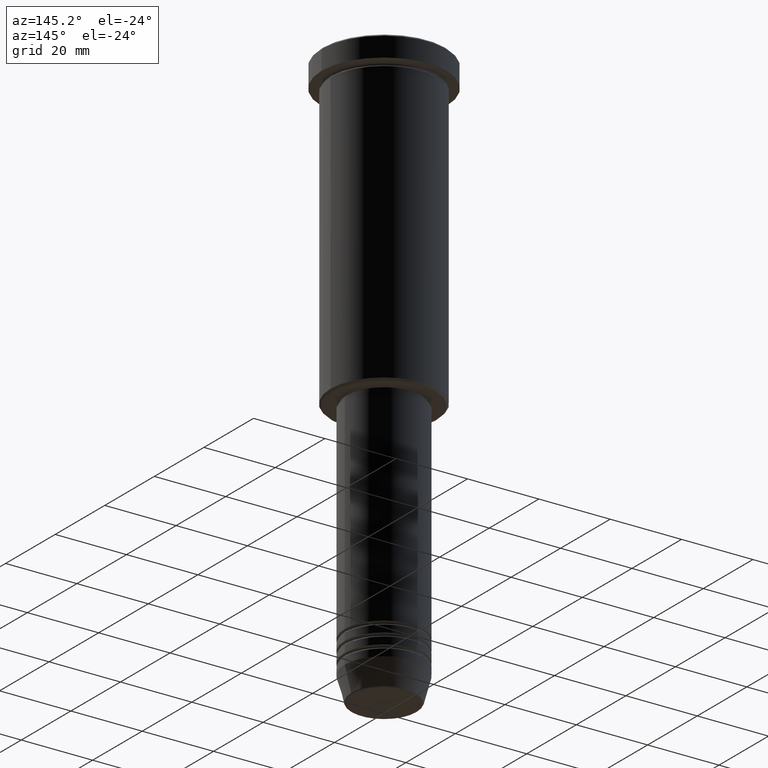
[diagram: clean part render]
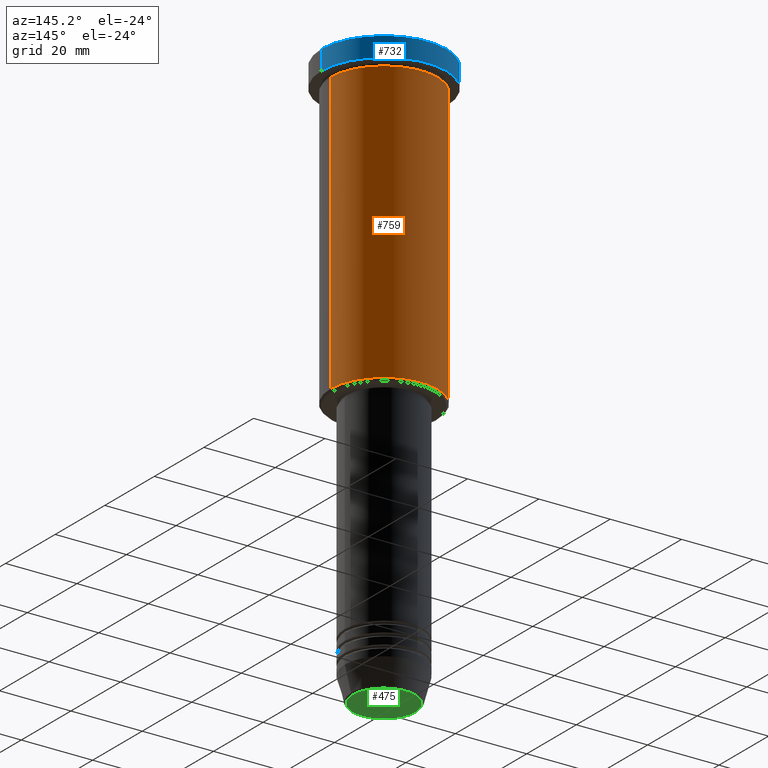
[diagram: same view with three faces highlighted in distinct colors, each labeled with its STEP entity id]
A machine part, auxiliary view with three faces highlighted in distinct colors.
Their STEP definitions:

[orange] entity #759 — the highlighted cylindrical surface (partial cylindrical patch) has radius 15 mm, axis along (-0, -0, 1).
#4 = ORIENTED_EDGE ( 'NONE', *, *, #534, .F. ) ;
#80 = CARTESIAN_POINT ( 'NONE',  ( 0.000000000000000000, 0.000000000000000000, -6.999999999999995559 ) ) ;
#82 = CARTESIAN_POINT ( 'NONE',  ( -15.00000000000000000, 1.836970198721029589E-15, -6.999999999999995559 ) ) ;
#107 = DIRECTION ( 'NONE',  ( -0.000000000000000000, -0.000000000000000000, 1.000000000000000000 ) ) ;
#114 = EDGE_CURVE ( 'NONE', #267, #514, #1035, .T. ) ;
#147 = CYLINDRICAL_SURFACE ( 'NONE', #877, 15.00000000000000000 ) ;
#241 = DIRECTION ( 'NONE',  ( -1.000000000000000000, 0.000000000000000000, 0.000000000000000000 ) ) ;
#267 = VERTEX_POINT ( 'NONE', #1138 ) ;
#316 = DIRECTION ( 'NONE',  ( -0.000000000000000000, -0.000000000000000000, 1.000000000000000000 ) ) ;
#329 = DIRECTION ( 'NONE',  ( -0.000000000000000000, -0.000000000000000000, 1.000000000000000000 ) ) ;
#336 = VERTEX_POINT ( 'NONE', #602 ) ;
#358 = DIRECTION ( 'NONE',  ( 1.000000000000000000, 0.000000000000000000, 0.000000000000000000 ) ) ;
#408 = CARTESIAN_POINT ( 'NONE',  ( 0.000000000000000000, 0.000000000000000000, 0.000000000000000000 ) ) ;
#443 = ORIENTED_EDGE ( 'NONE', *, *, #863, .F. ) ;
#479 = AXIS2_PLACEMENT_3D ( 'NONE', #1149, #504, #241 ) ;
#504 = DIRECTION ( 'NONE',  ( -0.000000000000000000, -0.000000000000000000, 1.000000000000000000 ) ) ;
#514 = VERTEX_POINT ( 'NONE', #82 ) ;
#520 = ORIENTED_EDGE ( 'NONE', *, *, #746, .T. ) ;
#534 = EDGE_CURVE ( 'NONE', #914, #336, #853, .T. ) ;
#536 = DIRECTION ( 'NONE',  ( -0.000000000000000000, -0.000000000000000000, 1.000000000000000000 ) ) ;
#571 = VECTOR ( 'NONE', #316, 1000.000000000000000 ) ;
#582 = CARTESIAN_POINT ( 'NONE',  ( -15.00000000000000000, 1.836970198721029589E-15, 0.000000000000000000 ) ) ;
#602 = CARTESIAN_POINT ( 'NONE',  ( 15.00000000000000000, 0.000000000000000000, -6.999999999999995559 ) ) ;
#633 = CIRCLE ( 'NONE', #1090, 15.00000000000000000 ) ;
#705 = EDGE_LOOP ( 'NONE', ( #520, #1056, #443, #4 ) ) ;
#746 = EDGE_CURVE ( 'NONE', #914, #267, #899, .T. ) ;
#759 = ADVANCED_FACE ( 'NONE', ( #948 ), #147, .T. ) ;
#853 = LINE ( 'NONE', #929, #1124 ) ;
#863 = EDGE_CURVE ( 'NONE', #336, #514, #633, .T. ) ;
#877 = AXIS2_PLACEMENT_3D ( 'NONE', #408, #329, #884 ) ;
#884 = DIRECTION ( 'NONE',  ( 1.000000000000000000, 0.000000000000000000, 0.000000000000000000 ) ) ;
#899 = CIRCLE ( 'NONE', #479, 15.00000000000000000 ) ;
#905 = CARTESIAN_POINT ( 'NONE',  ( 15.00000000000000000, 0.000000000000000000, -85.49999999999998579 ) ) ;
#914 = VERTEX_POINT ( 'NONE', #905 ) ;
#929 = CARTESIAN_POINT ( 'NONE',  ( 15.00000000000000000, 0.000000000000000000, 0.000000000000000000 ) ) ;
#948 = FACE_OUTER_BOUND ( 'NONE', #705, .T. ) ;
#1035 = LINE ( 'NONE', #582, #571 ) ;
#1056 = ORIENTED_EDGE ( 'NONE', *, *, #114, .T. ) ;
#1090 = AXIS2_PLACEMENT_3D ( 'NONE', #80, #536, #358 ) ;
#1124 = VECTOR ( 'NONE', #107, 1000.000000000000000 ) ;
#1138 = CARTESIAN_POINT ( 'NONE',  ( -15.00000000000000000, 1.836970198721029589E-15, -85.49999999999998579 ) ) ;
#1149 = CARTESIAN_POINT ( 'NONE',  ( 0.000000000000000000, 0.000000000000000000, -85.49999999999998579 ) ) ;

[blue] entity #732 — the highlighted cylindrical surface (partial cylindrical patch) has radius 17.5 mm, axis along (-0, -0, 1).
#90 = VERTEX_POINT ( 'NONE', #840 ) ;
#126 = LINE ( 'NONE', #386, #228 ) ;
#149 = EDGE_CURVE ( 'NONE', #436, #861, #126, .T. ) ;
#153 = CYLINDRICAL_SURFACE ( 'NONE', #365, 17.50000000000000000 ) ;
#214 = ORIENTED_EDGE ( 'NONE', *, *, #404, .T. ) ;
#228 = VECTOR ( 'NONE', #679, 1000.000000000000000 ) ;
#230 = CARTESIAN_POINT ( 'NONE',  ( 0.000000000000000000, 0.000000000000000000, 0.000000000000000000 ) ) ;
#255 = CIRCLE ( 'NONE', #1050, 17.50000000000000000 ) ;
#264 = CARTESIAN_POINT ( 'NONE',  ( -17.50000000000000000, 2.143131898507868248E-15, -0.4999999999999725775 ) ) ;
#349 = CIRCLE ( 'NONE', #560, 17.50000000000000000 ) ;
#354 = CARTESIAN_POINT ( 'NONE',  ( 0.000000000000000000, 0.000000000000000000, -0.4999999999999725775 ) ) ;
#365 = AXIS2_PLACEMENT_3D ( 'NONE', #230, #686, #859 ) ;
#386 = CARTESIAN_POINT ( 'NONE',  ( -17.50000000000000000, 2.143131898507868248E-15, 0.000000000000000000 ) ) ;
#391 = CARTESIAN_POINT ( 'NONE',  ( 17.50000000000000000, 0.000000000000000000, -0.4999999999999725775 ) ) ;
#404 = EDGE_CURVE ( 'NONE', #90, #436, #349, .T. ) ;
#423 = CARTESIAN_POINT ( 'NONE',  ( 17.50000000000000000, 0.000000000000000000, 0.000000000000000000 ) ) ;
#435 = DIRECTION ( 'NONE',  ( 1.000000000000000000, 0.000000000000000000, 0.000000000000000000 ) ) ;
#436 = VERTEX_POINT ( 'NONE', #828 ) ;
#446 = EDGE_CURVE ( 'NONE', #861, #1069, #255, .T. ) ;
#447 = EDGE_LOOP ( 'NONE', ( #214, #1122, #886, #963 ) ) ;
#449 = DIRECTION ( 'NONE',  ( 0.000000000000000000, 0.000000000000000000, -1.000000000000000000 ) ) ;
#463 = DIRECTION ( 'NONE',  ( -0.000000000000000000, -0.000000000000000000, 1.000000000000000000 ) ) ;
#516 = LINE ( 'NONE', #423, #674 ) ;
#560 = AXIS2_PLACEMENT_3D ( 'NONE', #980, #463, #629 ) ;
#629 = DIRECTION ( 'NONE',  ( 1.000000000000000000, 0.000000000000000000, 0.000000000000000000 ) ) ;
#674 = VECTOR ( 'NONE', #789, 1000.000000000000000 ) ;
#679 = DIRECTION ( 'NONE',  ( -0.000000000000000000, -0.000000000000000000, 1.000000000000000000 ) ) ;
#686 = DIRECTION ( 'NONE',  ( -0.000000000000000000, -0.000000000000000000, 1.000000000000000000 ) ) ;
#732 = ADVANCED_FACE ( 'NONE', ( #960 ), #153, .T. ) ;
#789 = DIRECTION ( 'NONE',  ( -0.000000000000000000, -0.000000000000000000, 1.000000000000000000 ) ) ;
#795 = EDGE_CURVE ( 'NONE', #90, #1069, #516, .T. ) ;
#828 = CARTESIAN_POINT ( 'NONE',  ( -17.50000000000000000, 2.143131898507868248E-15, -5.999999999999995559 ) ) ;
#840 = CARTESIAN_POINT ( 'NONE',  ( 17.50000000000000000, 0.000000000000000000, -5.999999999999995559 ) ) ;
#859 = DIRECTION ( 'NONE',  ( 1.000000000000000000, 0.000000000000000000, 0.000000000000000000 ) ) ;
#861 = VERTEX_POINT ( 'NONE', #264 ) ;
#886 = ORIENTED_EDGE ( 'NONE', *, *, #446, .T. ) ;
#960 = FACE_OUTER_BOUND ( 'NONE', #447, .T. ) ;
#963 = ORIENTED_EDGE ( 'NONE', *, *, #795, .F. ) ;
#980 = CARTESIAN_POINT ( 'NONE',  ( 0.000000000000000000, 0.000000000000000000, -5.999999999999995559 ) ) ;
#1050 = AXIS2_PLACEMENT_3D ( 'NONE', #354, #449, #435 ) ;
#1069 = VERTEX_POINT ( 'NONE', #391 ) ;
#1122 = ORIENTED_EDGE ( 'NONE', *, *, #149, .T. ) ;

[green] entity #475 — the highlighted planar face has unit normal (0, -0, 1).
#57 = CARTESIAN_POINT ( 'NONE',  ( -8.740692158992663607, 1.099999016768740442E-15, -160.9999999999999716 ) ) ;
#66 = DIRECTION ( 'NONE',  ( 1.000000000000000000, 0.000000000000000000, 0.000000000000000000 ) ) ;
#73 = DIRECTION ( 'NONE',  ( 0.000000000000000000, 0.000000000000000000, -1.000000000000000000 ) ) ;
#137 = CIRCLE ( 'NONE', #765, 8.740692158992663607 ) ;
#150 = CARTESIAN_POINT ( 'NONE',  ( 0.000000000000000000, 0.000000000000000000, -160.9999999999999716 ) ) ;
#151 = ORIENTED_EDGE ( 'NONE', *, *, #346, .T. ) ;
#273 = FACE_OUTER_BOUND ( 'NONE', #1036, .T. ) ;
#346 = EDGE_CURVE ( 'NONE', #787, #925, #137, .T. ) ;
#417 = CIRCLE ( 'NONE', #655, 8.740692158992663607 ) ;
#475 = ADVANCED_FACE ( 'NONE', ( #273 ), #547, .F. ) ;
#498 = DIRECTION ( 'NONE',  ( 0.000000000000000000, 0.000000000000000000, -1.000000000000000000 ) ) ;
#547 = PLANE ( 'NONE',  #916 ) ;
#625 = DIRECTION ( 'NONE',  ( 1.000000000000000000, 0.000000000000000000, 0.000000000000000000 ) ) ;
#655 = AXIS2_PLACEMENT_3D ( 'NONE', #864, #498, #66 ) ;
#724 = EDGE_CURVE ( 'NONE', #925, #787, #417, .T. ) ;
#742 = CARTESIAN_POINT ( 'NONE',  ( 8.740692158992663607, 0.000000000000000000, -160.9999999999999716 ) ) ;
#765 = AXIS2_PLACEMENT_3D ( 'NONE', #150, #73, #1156 ) ;
#787 = VERTEX_POINT ( 'NONE', #57 ) ;
#864 = CARTESIAN_POINT ( 'NONE',  ( 0.000000000000000000, 0.000000000000000000, -160.9999999999999716 ) ) ;
#897 = ORIENTED_EDGE ( 'NONE', *, *, #724, .T. ) ;
#916 = AXIS2_PLACEMENT_3D ( 'NONE', #1076, #995, #625 ) ;
#925 = VERTEX_POINT ( 'NONE', #742 ) ;
#995 = DIRECTION ( 'NONE',  ( 0.000000000000000000, -0.000000000000000000, 1.000000000000000000 ) ) ;
#1036 = EDGE_LOOP ( 'NONE', ( #897, #151 ) ) ;
#1076 = CARTESIAN_POINT ( 'NONE',  ( 0.000000000000000000, 0.000000000000000000, -160.9999999999999716 ) ) ;
#1156 = DIRECTION ( 'NONE',  ( 1.000000000000000000, 0.000000000000000000, 0.000000000000000000 ) ) ;